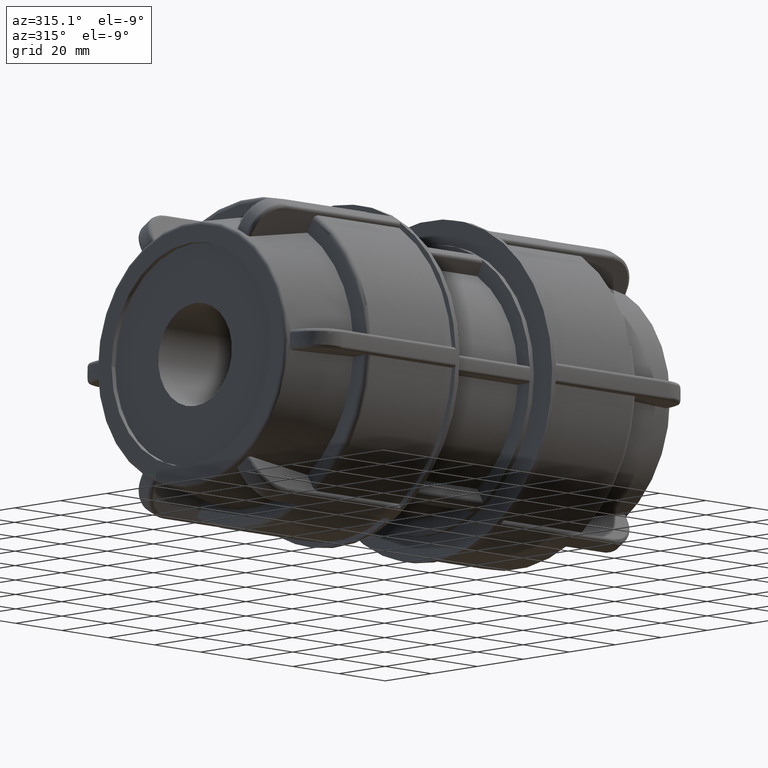
[diagram: clean part render]
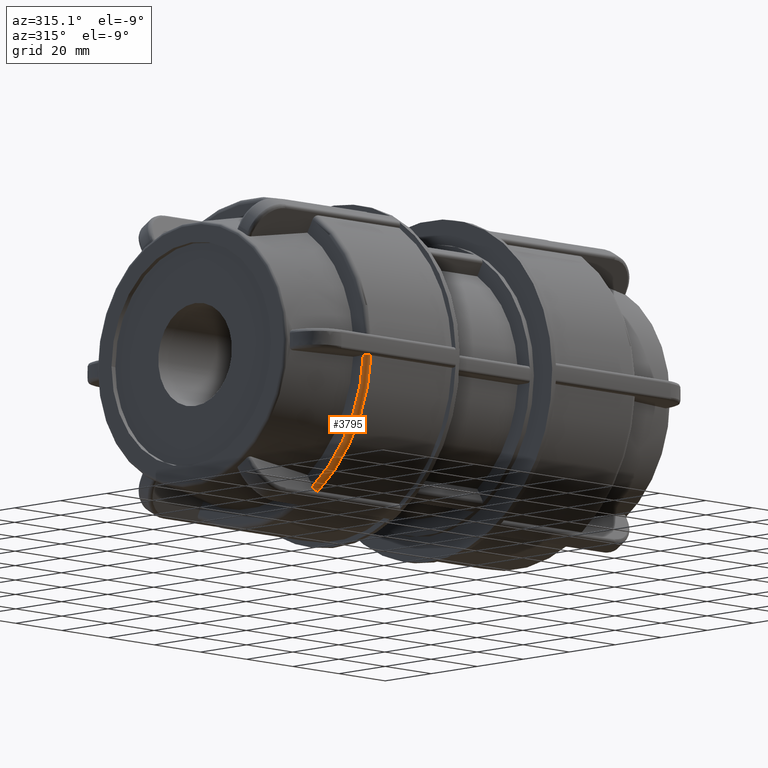
[diagram: same view with one face highlighted and labeled with its STEP entity id]
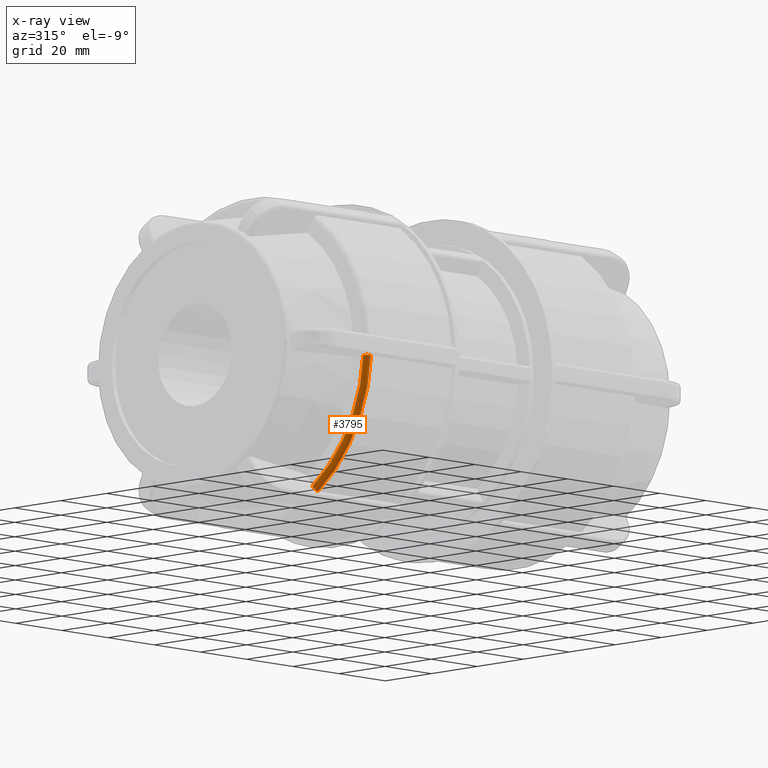
[diagram: x-ray of the same camera — body ghosted, the highlighted face saturated]
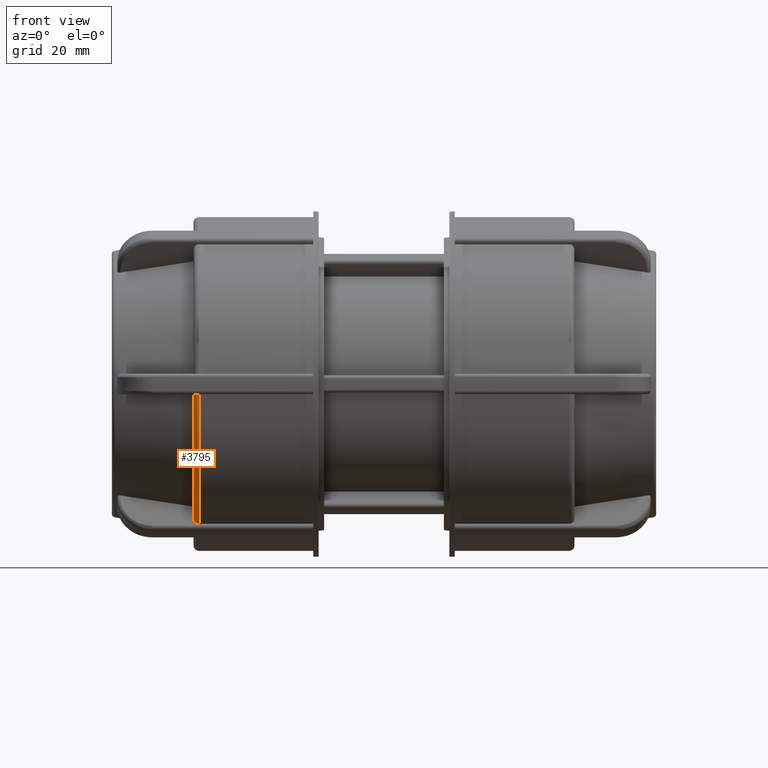
[diagram: same view with one face highlighted and labeled with its STEP entity id]
A machine part, auxiliary view. The second image highlights one B-rep face of the part: STEP entity #3795.
The next image is the same camera in x-ray: the body ghosted, the highlighted face saturated — about 0% of this face is hidden behind the body in this view.
A second angle (front view) of the same face is appended — the face is thin or edge-on in the first view.
In plain terms, the highlighted toroidal blend (fillet) surface has major radius 49.74 mm and minor (blend) radius 1.67 mm.
Its self-contained STEP definition (entity closure, byte-faithful):
#25=TOROIDAL_SURFACE('',#4140,49.74,1.67);
#77=B_SPLINE_CURVE_WITH_KNOTS('',3,(#5999,#6000,#6001,#6002,#6003,#6004,
#6005,#6006,#6007,#6008),.UNSPECIFIED.,.F.,.F.,(4,2,2,2,4),(-0.247562626783386,
-0.185570297774529,-0.123644029369257,-0.0617922903017216,0.),
 .UNSPECIFIED.);
#105=B_SPLINE_CURVE_WITH_KNOTS('',3,(#6640,#6641,#6642,#6643,#6644,#6645,
#6646,#6647,#6648,#6649),.UNSPECIFIED.,.F.,.F.,(4,2,2,2,4),(0.,0.061822670858442,
0.123704867379069,0.185600757791211,0.247562628182969),.UNSPECIFIED.);
#409=FACE_OUTER_BOUND('',#651,.T.);
#651=EDGE_LOOP('',(#2952,#2953,#2954,#2955));
#1361=CIRCLE('',#4126,49.74);
#1370=CIRCLE('',#4141,51.41);
#1609=VERTEX_POINT('',#5996);
#1610=VERTEX_POINT('',#5998);
#1679=VERTEX_POINT('',#6637);
#1680=VERTEX_POINT('',#6639);
#2035=EDGE_CURVE('',#1610,#1609,#77,.T.);
#2141=EDGE_CURVE('',#1680,#1679,#105,.T.);
#2156=EDGE_CURVE('',#1679,#1610,#1361,.T.);
#2167=EDGE_CURVE('',#1609,#1680,#1370,.T.);
#2952=ORIENTED_EDGE('',*,*,#2035,.T.);
#2953=ORIENTED_EDGE('',*,*,#2167,.T.);
#2954=ORIENTED_EDGE('',*,*,#2141,.T.);
#2955=ORIENTED_EDGE('',*,*,#2156,.T.);
#3795=ADVANCED_FACE('',(#409),#25,.T.);
#4126=AXIS2_PLACEMENT_3D('',#6687,#4904,#4905);
#4140=AXIS2_PLACEMENT_3D('',#6715,#4933,#4934);
#4141=AXIS2_PLACEMENT_3D('',#6716,#4935,#4936);
#4904=DIRECTION('center_axis',(1.,3.06161699786838E-16,0.));
#4905=DIRECTION('ref_axis',(3.06161699786838E-16,-1.,1.83697019872103E-16));
#4933=DIRECTION('center_axis',(1.,3.06161699786838E-16,0.));
#4934=DIRECTION('ref_axis',(0.,0.,-1.));
#4935=DIRECTION('center_axis',(-1.,-3.06161699786838E-16,0.));
#4936=DIRECTION('ref_axis',(3.07735423087113E-16,-1.,1.83697019872103E-16));
#5996=CARTESIAN_POINT('',(-56.78,-28.3846828498372,-42.8637128526468));
#5998=CARTESIAN_POINT('',(-58.45,-27.548058083845,-41.414636251078));
#5999=CARTESIAN_POINT('Ctrl Pts',(-58.45,-27.548058083845,-41.414636251078));
#6000=CARTESIAN_POINT('Ctrl Pts',(-58.45,-27.6513786321931,-41.5935926902828));
#6001=CARTESIAN_POINT('Ctrl Pts',(-58.4016935444585,-27.7729879123161,-41.8042261421276));
#6002=CARTESIAN_POINT('Ctrl Pts',(-58.2437741301792,-27.9638292517297,-42.1347730381766));
#6003=CARTESIAN_POINT('Ctrl Pts',(-58.1062949093139,-28.0668550583608,-42.3132189697523));
#6004=CARTESIAN_POINT('Ctrl Pts',(-57.8147156802085,-28.2128129567598,-42.5660254655455));
#6005=CARTESIAN_POINT('Ctrl Pts',(-57.6090944466039,-28.2816063254479,-42.685179075337));
#6006=CARTESIAN_POINT('Ctrl Pts',(-57.2283814630195,-28.3605407597446,-42.8218975260057));
#6007=CARTESIAN_POINT('Ctrl Pts',(-56.9859743010058,-28.3846828498372,-42.8637128526468));
#6008=CARTESIAN_POINT('Ctrl Pts',(-56.78,-28.3846828498372,-42.8637128526468));
#6637=CARTESIAN_POINT('',(-58.45,-49.640156123848,-3.14999999999999));
#6639=CARTESIAN_POINT('',(-56.78,-51.3134056558323,-3.14999999999999));
#6640=CARTESIAN_POINT('Ctrl Pts',(-56.78,-51.3134056558323,-3.14999999999999));
#6641=CARTESIAN_POINT('Ctrl Pts',(-56.9860755695281,-51.3134056558323,-3.14999999999999));
#6642=CARTESIAN_POINT('Ctrl Pts',(-57.2285972934731,-51.2650745527216,-3.14999999999999));
#6643=CARTESIAN_POINT('Ctrl Pts',(-57.6094674308045,-51.1070552614487,-3.14999999999999));
#6644=CARTESIAN_POINT('Ctrl Pts',(-57.8151504632573,-50.9693418267355,-3.14999999999999));
#6645=CARTESIAN_POINT('Ctrl Pts',(-58.1066184317647,-50.6773145657399,-3.14999999999999));
#6646=CARTESIAN_POINT('Ctrl Pts',(-58.243971304231,-50.4713247397197,-3.14999999999999));
#6647=CARTESIAN_POINT('Ctrl Pts',(-58.4017404315395,-50.0897993490763,-3.14999999999999));
#6648=CARTESIAN_POINT('Ctrl Pts',(-58.45,-49.8466956918205,-3.14999999999999));
#6649=CARTESIAN_POINT('Ctrl Pts',(-58.45,-49.640156123848,-3.14999999999999));
#6687=CARTESIAN_POINT('Origin',(-58.45,-1.78951513525407E-14,0.));
#6715=CARTESIAN_POINT('Origin',(-56.78,-1.73838613138967E-14,0.));
#6716=CARTESIAN_POINT('Origin',(-56.78,-1.73838613138967E-14,0.));